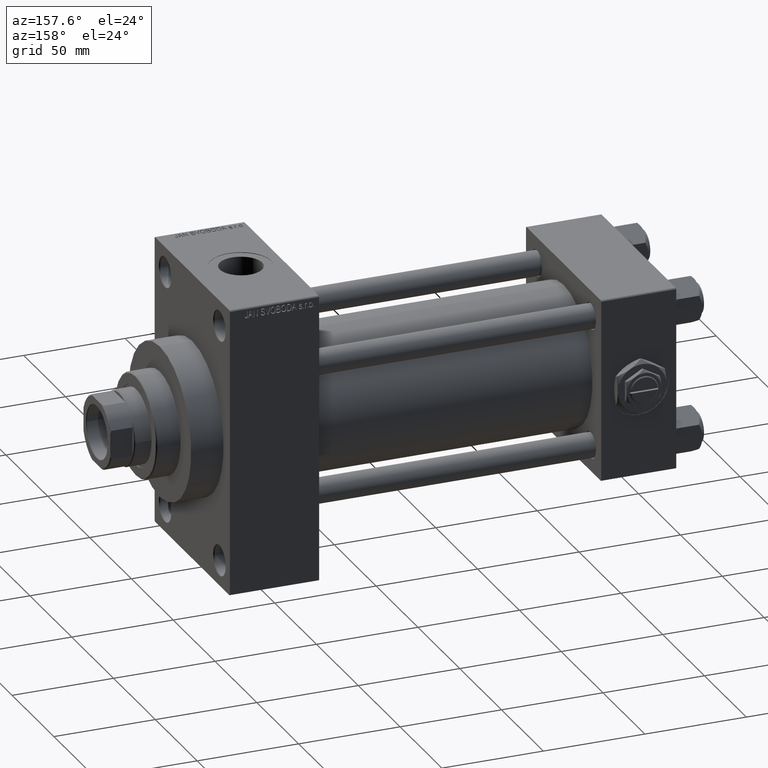
[diagram: clean part render]
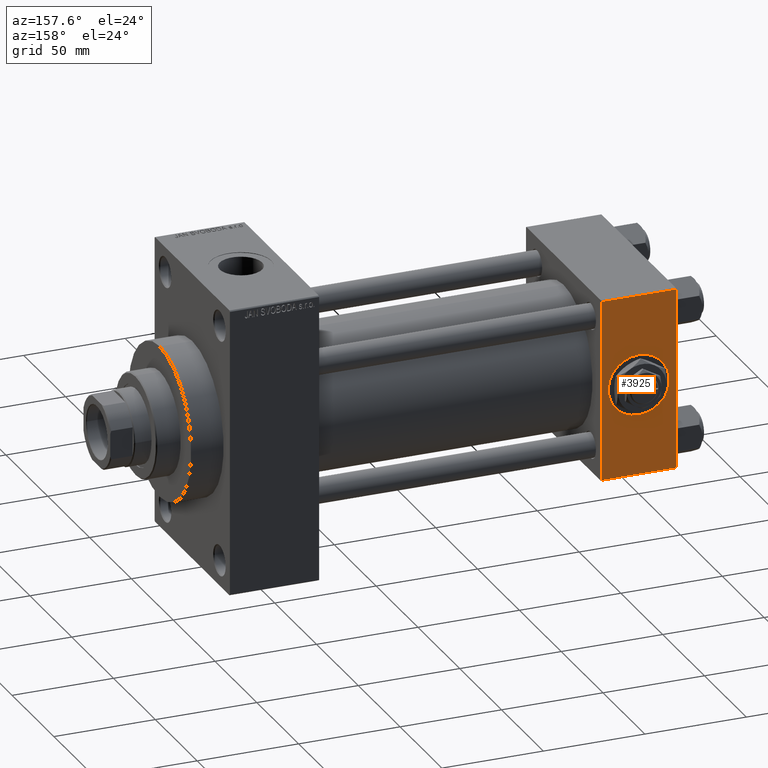
[diagram: same view with one face highlighted and labeled with its STEP entity id]
A machine part, auxiliary view. The second image highlights one B-rep face of the part: STEP entity #3925.
In plain terms, the highlighted planar face has unit normal (0, 1, 0).
Its self-contained STEP definition (entity closure, byte-faithful):
#108 = EDGE_LOOP ( 'NONE', ( #40390, #24654 ) ) ;
#400 = CARTESIAN_POINT ( 'NONE',  ( 18.50000000000000355, 45.00000000000000000, -15.00000000000000178 ) ) ;
#902 = EDGE_CURVE ( 'NONE', #35721, #46407, #23493, .T. ) ;
#1938 = DIRECTION ( 'NONE',  ( 0.000000000000000000, 0.000000000000000000, 1.000000000000000000 ) ) ;
#2149 = AXIS2_PLACEMENT_3D ( 'NONE', #16863, #8729, #46353 ) ;
#2419 = CARTESIAN_POINT ( 'NONE',  ( 18.50000000000000000, 45.00000000000000000, 0.000000000000000000 ) ) ;
#2628 = VERTEX_POINT ( 'NONE', #40074 ) ;
#3113 = VECTOR ( 'NONE', #13487, 1000.000000000000000 ) ;
#3925 = ADVANCED_FACE ( 'NONE', ( #43963, #10069 ), #25176, .T. ) ;
#5030 = CARTESIAN_POINT ( 'NONE',  ( 37.00000000000000000, 45.00000000000000000, -44.49999999999996447 ) ) ;
#8277 = EDGE_CURVE ( 'NONE', #45859, #2628, #35380, .T. ) ;
#8332 = LINE ( 'NONE', #34349, #44156 ) ;
#8729 = DIRECTION ( 'NONE',  ( 0.000000000000000000, 1.000000000000000000, 0.000000000000000000 ) ) ;
#9083 = VECTOR ( 'NONE', #15809, 1000.000000000000000 ) ;
#9628 = ORIENTED_EDGE ( 'NONE', *, *, #38526, .F. ) ;
#10069 = FACE_OUTER_BOUND ( 'NONE', #42128, .T. ) ;
#11342 = CARTESIAN_POINT ( 'NONE',  ( 0.000000000000000000, 45.00000000000000000, 44.49999999999999289 ) ) ;
#11726 = ORIENTED_EDGE ( 'NONE', *, *, #16306, .T. ) ;
#13487 = DIRECTION ( 'NONE',  ( 1.000000000000000000, 0.000000000000000000, 0.000000000000000000 ) ) ;
#13541 = DIRECTION ( 'NONE',  ( 0.000000000000000000, 1.000000000000000000, 0.000000000000000000 ) ) ;
#15082 = EDGE_CURVE ( 'NONE', #46407, #35721, #26739, .T. ) ;
#15809 = DIRECTION ( 'NONE',  ( -1.000000000000000000, 0.000000000000000000, 0.000000000000000000 ) ) ;
#16306 = EDGE_CURVE ( 'NONE', #22321, #45859, #8332, .T. ) ;
#16863 = CARTESIAN_POINT ( 'NONE',  ( 18.50000000000000000, 45.00000000000000000, 0.000000000000000000 ) ) ;
#17919 = CARTESIAN_POINT ( 'NONE',  ( 18.50000000000000000, 45.00000000000000000, 15.00000000000000178 ) ) ;
#18398 = EDGE_CURVE ( 'NONE', #38103, #22321, #39742, .T. ) ;
#20067 = VECTOR ( 'NONE', #39223, 1000.000000000000000 ) ;
#22321 = VERTEX_POINT ( 'NONE', #33203 ) ;
#22436 = DIRECTION ( 'NONE',  ( 0.000000000000000000, -0.000000000000000000, 1.000000000000000000 ) ) ;
#23493 = CIRCLE ( 'NONE', #2149, 15.00000000000000178 ) ;
#24122 = LINE ( 'NONE', #35527, #20067 ) ;
#24654 = ORIENTED_EDGE ( 'NONE', *, *, #902, .F. ) ;
#25176 = PLANE ( 'NONE',  #44985 ) ;
#26739 = CIRCLE ( 'NONE', #32231, 15.00000000000000178 ) ;
#30514 = ORIENTED_EDGE ( 'NONE', *, *, #18398, .T. ) ;
#32231 = AXIS2_PLACEMENT_3D ( 'NONE', #2419, #13541, #1938 ) ;
#33203 = CARTESIAN_POINT ( 'NONE',  ( 37.00000000000000000, 45.00000000000000000, 44.49999999999999289 ) ) ;
#34349 = CARTESIAN_POINT ( 'NONE',  ( 37.00000000000000000, 45.00000000000000000, 45.00000000000000711 ) ) ;
#35089 = DIRECTION ( 'NONE',  ( 0.000000000000000000, 0.000000000000000000, -1.000000000000000000 ) ) ;
#35380 = LINE ( 'NONE', #38115, #9083 ) ;
#35527 = CARTESIAN_POINT ( 'NONE',  ( 0.000000000000000000, 45.00000000000000000, 45.00000000000000711 ) ) ;
#35721 = VERTEX_POINT ( 'NONE', #400 ) ;
#36764 = CARTESIAN_POINT ( 'NONE',  ( 37.00000000000000000, 45.00000000000000000, 44.49999999999999289 ) ) ;
#38103 = VERTEX_POINT ( 'NONE', #11342 ) ;
#38115 = CARTESIAN_POINT ( 'NONE',  ( 37.00000000000000000, 45.00000000000000000, -44.49999999999999289 ) ) ;
#38526 = EDGE_CURVE ( 'NONE', #38103, #2628, #24122, .T. ) ;
#39223 = DIRECTION ( 'NONE',  ( 0.000000000000000000, 0.000000000000000000, -1.000000000000000000 ) ) ;
#39742 = LINE ( 'NONE', #36764, #3113 ) ;
#40074 = CARTESIAN_POINT ( 'NONE',  ( 0.000000000000000000, 45.00000000000000000, -44.49999999999996447 ) ) ;
#40390 = ORIENTED_EDGE ( 'NONE', *, *, #15082, .F. ) ;
#41498 = CARTESIAN_POINT ( 'NONE',  ( 37.00000000000000000, 45.00000000000000000, 45.00000000000000711 ) ) ;
#42128 = EDGE_LOOP ( 'NONE', ( #11726, #43367, #9628, #30514 ) ) ;
#43367 = ORIENTED_EDGE ( 'NONE', *, *, #8277, .T. ) ;
#43963 = FACE_BOUND ( 'NONE', #108, .T. ) ;
#44156 = VECTOR ( 'NONE', #35089, 1000.000000000000000 ) ;
#44985 = AXIS2_PLACEMENT_3D ( 'NONE', #41498, #45702, #22436 ) ;
#45702 = DIRECTION ( 'NONE',  ( -0.000000000000000000, 1.000000000000000000, 0.000000000000000000 ) ) ;
#45859 = VERTEX_POINT ( 'NONE', #5030 ) ;
#46353 = DIRECTION ( 'NONE',  ( 0.000000000000000000, 0.000000000000000000, 1.000000000000000000 ) ) ;
#46407 = VERTEX_POINT ( 'NONE', #17919 ) ;